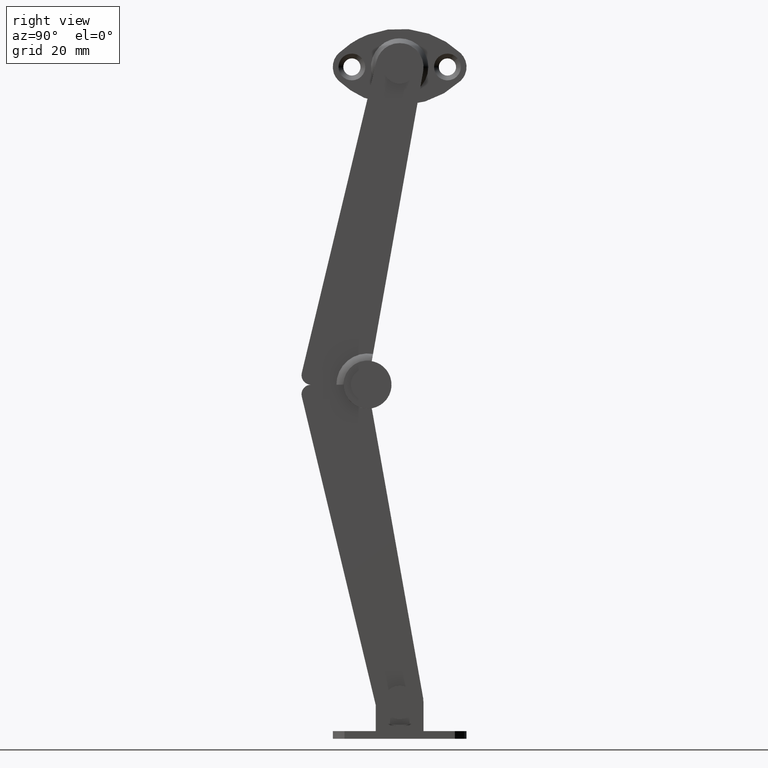
[diagram: clean part render]
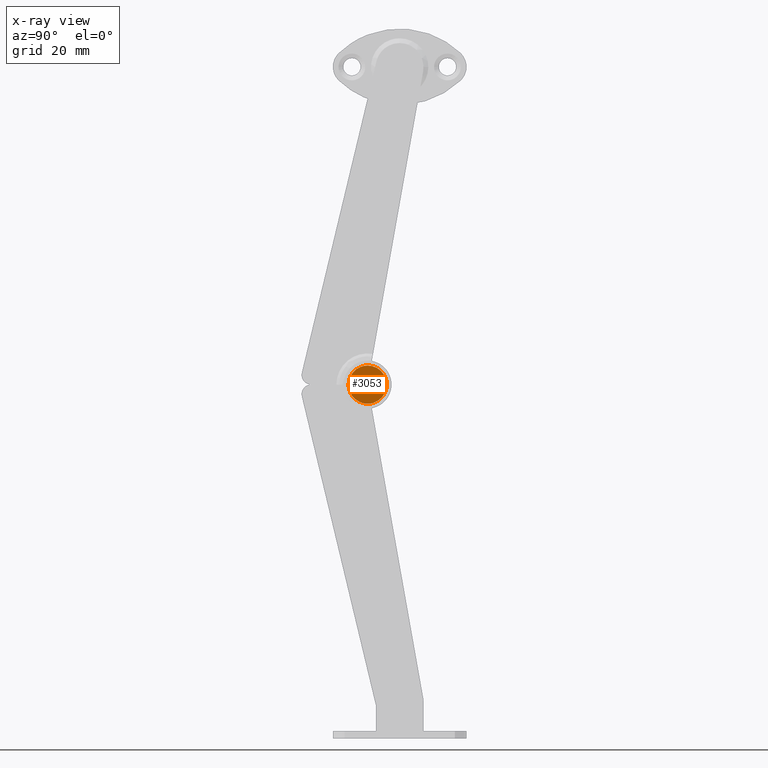
[diagram: x-ray — body ghosted, one internal face saturated and labeled with its STEP entity id]
A machine part, right view, then the same camera in x-ray: the body is ghosted and one INTERNAL B-rep face — a face not visible from any outside direction — is saturated and labeled: STEP entity #3053.
In plain terms, the highlighted face is a freeform B-spline surface patch.
Its self-contained STEP definition (entity closure, byte-faithful):
#2690=CARTESIAN_POINT('',(6.100004000000099,-5.604471133444305,-1.013354768801139));
#2691=VERTEX_POINT('',#2690);
#2697=CARTESIAN_POINT('',(6.100004000000100,-6.710388000000080,-1.499968999999988));
#2698=VERTEX_POINT('',#2697);
#2699=CARTESIAN_POINT('',(6.100004000000099,-5.604471133444305,-1.013354768801139));
#2700=CARTESIAN_POINT('',(6.100004000000096,-5.700704848581905,-1.118446918989171));
#2701=CARTESIAN_POINT('',(6.100004000000104,-5.913285480472167,-1.292572712991210));
#2702=CARTESIAN_POINT('',(6.100004000000105,-6.295898367703909,-1.460917240582019));
#2703=CARTESIAN_POINT('',(6.100004000000094,-6.567889080207501,-1.500025974248371));
#2704=CARTESIAN_POINT('',(6.100004000000100,-6.710388000000080,-1.499968999999988));
#2705=B_SPLINE_CURVE_WITH_KNOTS('',3,(#2699,#2700,#2701,#2702,#2703,#2704),.UNSPECIFIED.,.F.,.U.,(4,1,1,4),(0.000000109818328,0.427486572388893,0.816096033633271,1.243582495991093),.UNSPECIFIED.);
#2706=EDGE_CURVE('',#2691,#2698,#2705,.T.);
#2708=CARTESIAN_POINT('',(6.100004000000100,-8.210387999995289,0.000034790615160));
#2709=VERTEX_POINT('',#2708);
#2710=CARTESIAN_POINT('',(6.100004000000100,-6.710388000000080,-1.499968999999988));
#2711=CARTESIAN_POINT('',(6.100004000000090,-6.857657354790640,-1.500036632839356));
#2712=CARTESIAN_POINT('',(6.100004000000119,-7.139873468805607,-1.458054223497627));
#2713=CARTESIAN_POINT('',(6.100004000000087,-7.545233127463229,-1.272469651858173));
#2714=CARTESIAN_POINT('',(6.100004000000115,-7.861778847740921,-0.992541559106979));
#2715=CARTESIAN_POINT('',(6.100004000000070,-8.133063197382221,-0.564223067642630));
#2716=CARTESIAN_POINT('',(6.100004000000130,-8.210695368043822,-0.220928111073368));
#2717=CARTESIAN_POINT('',(6.100004000000100,-8.210387999995289,0.000034790615160));
#2718=B_SPLINE_CURVE_WITH_KNOTS('',3,(#2710,#2711,#2712,#2713,#2714,#2715,#2716,#2717),.UNSPECIFIED.,.F.,.U.,(4,1,1,1,1,4),(0.000000368189585,0.441790457536520,0.846806020975381,1.325348675668908,1.693552390448951,2.356255753075657),.UNSPECIFIED.);
#2719=EDGE_CURVE('',#2698,#2709,#2718,.T.);
#2721=CARTESIAN_POINT('',(6.100004000000100,-6.710388000000080,1.500031000000012));
#2722=VERTEX_POINT('',#2721);
#2723=CARTESIAN_POINT('',(6.100004000000100,-8.210387999995289,0.000034790615160));
#2724=CARTESIAN_POINT('',(6.100004000000116,-8.210454358254712,0.147302742999690));
#2725=CARTESIAN_POINT('',(6.100004000000072,-8.168484764669794,0.429526951294263));
#2726=CARTESIAN_POINT('',(6.100004000000114,-8.013770030776280,0.767302185812983));
#2727=CARTESIAN_POINT('',(6.100004000000107,-7.775121599508625,1.081020637392004));
#2728=CARTESIAN_POINT('',(6.100004000000089,-7.372671370116932,1.395259660230307));
#2729=CARTESIAN_POINT('',(6.100004000000128,-6.955916749837364,1.500541871447816));
#2730=CARTESIAN_POINT('',(6.100004000000100,-6.710388000000080,1.500031000000012));
#2731=B_SPLINE_CURVE_WITH_KNOTS('',3,(#2723,#2724,#2725,#2726,#2727,#2728,#2729,#2730),.UNSPECIFIED.,.F.,.U.,(4,1,1,1,1,4),(0.000000373359484,0.441789660024047,0.846804489908648,1.104528518836331,1.619915210400663,2.356251480062297),.UNSPECIFIED.);
#2732=EDGE_CURVE('',#2709,#2722,#2731,.T.);
#2734=CARTESIAN_POINT('',(6.100004000000099,-5.635412035081571,1.046178137325897));
#2735=VERTEX_POINT('',#2734);
#2736=CARTESIAN_POINT('',(6.100004000000100,-6.710388000000080,1.500031000000012));
#2737=CARTESIAN_POINT('',(6.100004000000099,-6.498120297146352,1.500303070488864));
#2738=CARTESIAN_POINT('',(6.100004000000101,-6.098902428624279,1.413722512387541));
#2739=CARTESIAN_POINT('',(6.100004000000105,-5.765915091068474,1.180518260814098));
#2740=CARTESIAN_POINT('',(6.100004000000099,-5.635412035081571,1.046178137325897));
#2741=B_SPLINE_CURVE_WITH_KNOTS('',3,(#2736,#2737,#2738,#2739,#2740),.UNSPECIFIED.,.F.,.U.,(4,1,4),(0.000000091365032,0.636685670303318,1.198513690536694),.UNSPECIFIED.);
#2742=EDGE_CURVE('',#2722,#2735,#2741,.T.);
#2777=CARTESIAN_POINT('',(6.100004000000099,-5.210388000004869,0.000027209384858));
#2778=VERTEX_POINT('',#2777);
#2779=CARTESIAN_POINT('',(6.100004000000099,-5.635412035081571,1.046178137325897));
#2780=CARTESIAN_POINT('',(6.100004000000098,-5.517587517451840,0.925238931893160));
#2781=CARTESIAN_POINT('',(6.100004000000098,-5.295741381291322,0.602739369565894));
#2782=CARTESIAN_POINT('',(6.100004000000107,-5.210057217286837,0.217154616085727));
#2783=CARTESIAN_POINT('',(6.100004000000099,-5.210388000004869,0.000027209384858));
#2784=B_SPLINE_CURVE_WITH_KNOTS('',3,(#2779,#2780,#2781,#2782,#2783),.UNSPECIFIED.,.F.,.U.,(4,1,4),(0.000000076971889,0.506527304413791,1.157743025367433),.UNSPECIFIED.);
#2785=EDGE_CURVE('',#2735,#2778,#2784,.T.);
#2787=CARTESIAN_POINT('',(6.100004000000099,-5.210388000004869,0.000027209384858));
#2788=CARTESIAN_POINT('',(6.100004000000097,-5.210137411757130,-0.208636163587809));
#2789=CARTESIAN_POINT('',(6.100004000000103,-5.289090763443056,-0.579259590709358));
#2790=CARTESIAN_POINT('',(6.100004000000096,-5.494784930504510,-0.893774324572840));
#2791=CARTESIAN_POINT('',(6.100004000000099,-5.604471133444305,-1.013354768801139));
#2792=B_SPLINE_CURVE_WITH_KNOTS('',3,(#2787,#2788,#2789,#2790,#2791),.UNSPECIFIED.,.F.,.U.,(4,1,4),(0.000000079510346,0.625866879076314,1.112668617737777),.UNSPECIFIED.);
#2793=EDGE_CURVE('',#2778,#2691,#2792,.T.);
#2846=CARTESIAN_POINT('',(6.100004000000100,-3.843795204863989,2.789748038841268));
#2847=VERTEX_POINT('',#2846);
#2853=CARTESIAN_POINT('',(6.100004000000100,-6.710388000000080,4.000016000000013));
#2854=VERTEX_POINT('',#2853);
#2855=CARTESIAN_POINT('',(6.100004000000100,-6.710388000000080,4.000016000000013));
#2856=CARTESIAN_POINT('',(6.100004000000104,-6.344165509154581,4.000168551096302));
#2857=CARTESIAN_POINT('',(6.100004000000095,-5.778316584247430,3.921690416265518));
#2858=CARTESIAN_POINT('',(6.100004000000105,-4.774537485217448,3.555913451101004));
#2859=CARTESIAN_POINT('',(6.100004000000079,-4.191778378088569,3.148029402414834));
#2860=CARTESIAN_POINT('',(6.100004000000100,-3.843795204863989,2.789748038841268));
#2861=B_SPLINE_CURVE_WITH_KNOTS('',3,(#2855,#2856,#2857,#2858,#2859,#2860),.UNSPECIFIED.,.F.,.U.,(4,1,1,4),(0.000000026183412,1.098633904295171,1.697887538635176,3.196024690080347),.UNSPECIFIED.);
#2862=EDGE_CURVE('',#2854,#2847,#2861,.T.);
#2864=CARTESIAN_POINT('',(6.100004000000100,-10.710372999999420,0.000033296005334));
#2865=VERTEX_POINT('',#2864);
#2866=CARTESIAN_POINT('',(6.100004000000100,-10.710372999999420,0.000033296005334));
#2867=CARTESIAN_POINT('',(6.100004000000102,-10.710914787876909,0.523746092719050));
#2868=CARTESIAN_POINT('',(6.100004000000101,-10.553840849116220,1.308613781686336));
#2869=CARTESIAN_POINT('',(6.100004000000105,-9.995781897555983,2.352738041629510));
#2870=CARTESIAN_POINT('',(6.100004000000086,-9.373759874602527,3.039001071981259));
#2871=CARTESIAN_POINT('',(6.100004000000146,-8.662792261387152,3.513870804248223));
#2872=CARTESIAN_POINT('',(6.100004000000036,-7.822851073739294,3.886286446311202));
#2873=CARTESIAN_POINT('',(6.100004000000147,-7.168591402444456,4.000375884323986));
#2874=CARTESIAN_POINT('',(6.100004000000100,-6.710388000000080,4.000016000000013));
#2875=B_SPLINE_CURVE_WITH_KNOTS('',3,(#2866,#2867,#2868,#2869,#2870,#2871,#2872,#2873,#2874),.UNSPECIFIED.,.F.,.U.,(4,1,1,1,1,1,4),(0.000000060680814,1.570829575804171,2.356263612650596,3.534355489870421,4.319766348582492,4.908850495742459,6.283318120702993),.UNSPECIFIED.);
#2876=EDGE_CURVE('',#2865,#2854,#2875,.T.);
#2878=CARTESIAN_POINT('',(6.100004000000100,-6.710388000000080,-3.999953999999988));
#2879=VERTEX_POINT('',#2878);
#2880=CARTESIAN_POINT('',(6.100004000000100,-6.710388000000080,-3.999953999999988));
#2881=CARTESIAN_POINT('',(6.100004000000080,-7.234092621337205,-4.000538932250668));
#2882=CARTESIAN_POINT('',(6.100004000000133,-8.019022862799124,-3.843439199965096));
#2883=CARTESIAN_POINT('',(6.100004000000074,-8.946986466702994,-3.347253792941765));
#2884=CARTESIAN_POINT('',(6.100004000000109,-9.557049499537714,-2.846623039501659));
#2885=CARTESIAN_POINT('',(6.100004000000104,-10.015942519434761,-2.287401205826313));
#2886=CARTESIAN_POINT('',(6.100004000000097,-10.404198654725681,-1.602198413259284));
#2887=CARTESIAN_POINT('',(6.100004000000102,-10.652377748781570,-0.850813375979026));
#2888=CARTESIAN_POINT('',(6.100004000000103,-10.710399410888140,-0.261757905410649));
#2889=CARTESIAN_POINT('',(6.100004000000100,-10.710372999999420,0.000033296005334));
#2890=B_SPLINE_CURVE_WITH_KNOTS('',3,(#2880,#2881,#2882,#2883,#2884,#2885,#2886,#2887,#2888,#2889),.UNSPECIFIED.,.F.,.U.,(4,1,1,1,1,1,1,4),(0.000000057531608,1.570830220256100,2.356264579841515,3.141660385889188,3.927056185297976,4.516128575126215,5.497924905929891,6.283320708900679),.UNSPECIFIED.);
#2891=EDGE_CURVE('',#2879,#2865,#2890,.T.);
#2893=CARTESIAN_POINT('',(6.100004000000100,-3.761289234846606,-2.702320022371819));
#2894=VERTEX_POINT('',#2893);
#2895=CARTESIAN_POINT('',(6.100004000000100,-3.761289234846606,-2.702320022371819));
#2896=CARTESIAN_POINT('',(6.100004000000108,-4.064495124165807,-3.033619729576978));
#2897=CARTESIAN_POINT('',(6.100004000000087,-4.645667020247835,-3.484667769590284));
#2898=CARTESIAN_POINT('',(6.100004000000117,-5.674186333743745,-3.905683792922639));
#2899=CARTESIAN_POINT('',(6.100004000000093,-6.330396280472273,-4.000112499793194));
#2900=CARTESIAN_POINT('',(6.100004000000100,-6.710388000000080,-3.999953999999988));
#2901=B_SPLINE_CURVE_WITH_KNOTS('',3,(#2895,#2896,#2897,#2898,#2899,#2900),.UNSPECIFIED.,.F.,.U.,(4,1,1,4),(0.000000053037766,1.347192419517156,2.176204882298069,3.316136645636451),.UNSPECIFIED.);
#2902=EDGE_CURVE('',#2894,#2879,#2901,.T.);
#2987=CARTESIAN_POINT('',(6.100004000000100,-2.710403000000739,0.000028703994717));
#2988=VERTEX_POINT('',#2987);
#2989=CARTESIAN_POINT('',(6.100004000000100,-2.710403000000739,0.000028703994717));
#2990=CARTESIAN_POINT('',(6.100004000000094,-2.710067890778540,-0.463618639784630));
#2991=CARTESIAN_POINT('',(6.100004000000127,-2.884402629977579,-1.452354619674780));
#2992=CARTESIAN_POINT('',(6.100004000000070,-3.405812413031126,-2.315285974650739));
#2993=CARTESIAN_POINT('',(6.100004000000100,-3.761289234846606,-2.702320022371819));
#2994=B_SPLINE_CURVE_WITH_KNOTS('',3,(#2989,#2990,#2991,#2992,#2993),.UNSPECIFIED.,.F.,.U.,(4,1,4),(0.000000032963615,1.390839826152964,2.967112848868575),.UNSPECIFIED.);
#2995=EDGE_CURVE('',#2988,#2894,#2994,.T.);
#2997=CARTESIAN_POINT('',(6.100004000000100,-3.843795204863989,2.789748038841268));
#2998=CARTESIAN_POINT('',(6.100004000000089,-3.529535894788087,2.467288045621173));
#2999=CARTESIAN_POINT('',(6.100004000000116,-3.104549120856295,1.849090005837087));
#3000=CARTESIAN_POINT('',(6.100004000000089,-2.773503459756200,0.868290381271842));
#3001=CARTESIAN_POINT('',(6.100004000000110,-2.710355457261405,0.289457994286187));
#3002=CARTESIAN_POINT('',(6.100004000000100,-2.710403000000739,0.000028703994717));
#3003=B_SPLINE_CURVE_WITH_KNOTS('',3,(#2997,#2998,#2999,#3000,#3001,#3002),.UNSPECIFIED.,.F.,.U.,(4,1,1,4),(0.000000021974337,1.350695498540475,2.218994503444828,3.087296710293443),.UNSPECIFIED.);
#3004=EDGE_CURVE('',#2847,#2988,#3003,.T.);
#3032=CARTESIAN_POINT('',(6.100004000000090,-2.310804438908304,-4.399552485994494));
#3033=CARTESIAN_POINT('',(6.100004000000090,-11.109971704142470,-4.399552485994494));
#3034=CARTESIAN_POINT('',(6.100004000000089,-2.310804438908304,4.399614700570435));
#3035=CARTESIAN_POINT('',(6.100004000000089,-11.109971704142470,4.399614700570435));
#3036=B_SPLINE_SURFACE_WITH_KNOTS('',1,1,((#3032,#3034),(#3033,#3035)),.UNSPECIFIED.,.F.,.F.,.U.,(2,2),(2,2),(0.0,8.799167265234166),(0.0,8.799167186564930),.UNSPECIFIED.);
#3037=ORIENTED_EDGE('',*,*,#2862,.T.);
#3038=ORIENTED_EDGE('',*,*,#3004,.T.);
#3039=ORIENTED_EDGE('',*,*,#2995,.T.);
#3040=ORIENTED_EDGE('',*,*,#2902,.T.);
#3041=ORIENTED_EDGE('',*,*,#2891,.T.);
#3042=ORIENTED_EDGE('',*,*,#2876,.T.);
#3043=EDGE_LOOP('',(#3037,#3038,#3039,#3040,#3041,#3042));
#3044=FACE_OUTER_BOUND('',#3043,.T.);
#3045=ORIENTED_EDGE('',*,*,#2719,.F.);
#3046=ORIENTED_EDGE('',*,*,#2706,.F.);
#3047=ORIENTED_EDGE('',*,*,#2793,.F.);
#3048=ORIENTED_EDGE('',*,*,#2785,.F.);
#3049=ORIENTED_EDGE('',*,*,#2742,.F.);
#3050=ORIENTED_EDGE('',*,*,#2732,.F.);
#3051=EDGE_LOOP('',(#3045,#3046,#3047,#3048,#3049,#3050));
#3052=FACE_BOUND('',#3051,.T.);
#3053=ADVANCED_FACE('',(#3044,#3052),#3036,.T.);